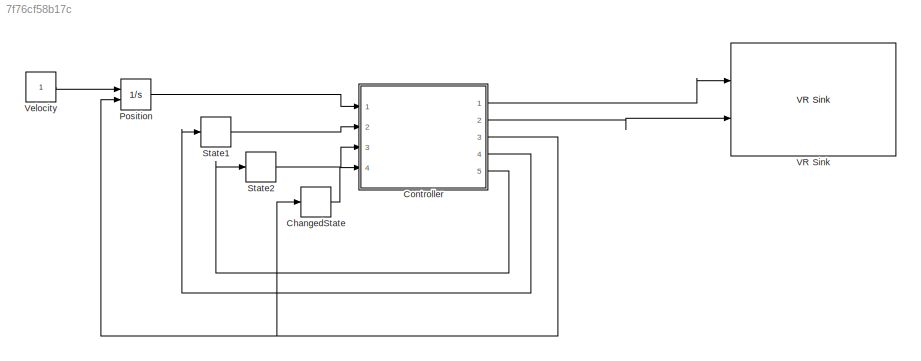
MODEL slx_7f76cf58b17c
KIND model
CONFIG AbsTol = auto
CONFIG FixedStep = auto
CONFIG MaxStep = auto
CONFIG MinStep = auto
CONFIG RelTol = 1e-3
CONFIG SampleTimeConstraint = Unconstrained
CONFIG Solver = VariableStepAuto
CONFIG SolverMode = SingleTasking
CONFIG SolverName = VariableStepAuto
CONFIG StartTime = 0.0
CONFIG StopTime = 10.0
BLOCK [Memory] ChangedState
  InheritSampleTime = on
  LinearizeMemory = on
  X0 = 1
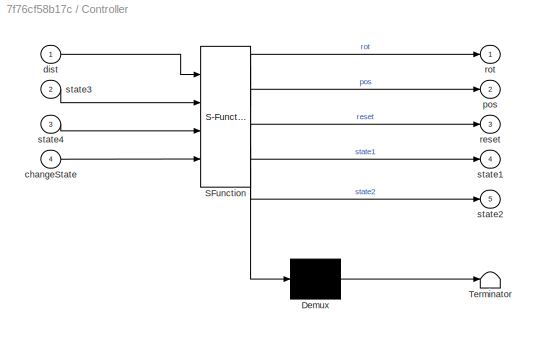
BLOCK [SubSystem] Controller
  ErrorFcn = Stateflow.Translate.translate
  PermitHierarchicalResolution = ExplicitOnly
  Ports = [4, 5]
  RequestExecContextInheritance = off
  SFBlockType = MATLAB Function
  TreatAsAtomicUnit = on
  Variant = off
BLOCK [Demux] Controller/ Demux 
  Outputs = 1
  Ports = [1, 1]
BLOCK [S-Function] Controller/ SFunction 
  EnableBusSupport = on
  FunctionName = sf_sfun
  PortCounts = [4 6]
  Ports = [4, 6]
  SFunctionDeploymentMode = off
  Tag = Stateflow S-Function MovementCoord 2
BLOCK [Terminator] Controller/ Terminator 
BLOCK [Inport] Controller/changeState
  IconDisplay = Port number
  Port = 4
BLOCK [Inport] Controller/dist
  IconDisplay = Port number
BLOCK [Outport] Controller/pos
  IconDisplay = Port number
  Port = 2
BLOCK [Outport] Controller/reset
  IconDisplay = Port number
  Port = 3
BLOCK [Outport] Controller/rot
  IconDisplay = Port number
BLOCK [Outport] Controller/state1
  IconDisplay = Port number
  Port = 4
BLOCK [Outport] Controller/state2
  IconDisplay = Port number
  Port = 5
BLOCK [Inport] Controller/state3
  IconDisplay = Port number
  Port = 2
BLOCK [Inport] Controller/state4
  IconDisplay = Port number
  Port = 3
BLOCK [Integrator] Position
  ExternalReset = rising
  Ports = [2, 1]
BLOCK [Memory] State1
  InheritSampleTime = on
  LinearizeMemory = on
  X0 = 1
BLOCK [Memory] State2
  InheritSampleTime = on
  LinearizeMemory = on
  X0 = 1
BLOCK [Reference] VR Sink  REF=vrlib/VR Sink
  InstantiateOnLoad = on
  Ports = [2]
  SourceBlock = vrlib/VR Sink
  SourceType = Virtual Reality Sink
BLOCK [Constant] Velocity
LINE ChangedState:1 -> Controller:4
LINE Controller:1 -> VR Sink:1
LINE Controller:2 -> VR Sink:2
NET Controller:3 -> ChangedState:1, Position:2
LINE Controller:4 -> State1:1
LINE Controller:5 -> State2:1
LINE Position:1 -> Controller:1
LINE State1:1 -> Controller:2
LINE State2:1 -> Controller:3
LINE Velocity:1 -> Position:1
note: NET lines group one-source signal fan-out (src -> all destinations, sorted); 1:1 wires keep LINE
CHART Controller states=1 transitions=1
  STATE_LABEL 'eML_blk_kernel()'
  STATE_LABEL 'SCRIPT:\nfunction [rot,pos, reset, state1, state2] = fcn(dist, state3, state4, changeState)\n \n    %Variables csOut and changeState enable the simultion to know when to\n    %change the starting and end positions of the ball. It is a feed/back\n    %variable\n    \n    %nrOfEndPos = size(endPos);\n    %nrOfStartPos = size(startPos);\n    nrOfEndPos = 5;\n    nrOfStartPos = 5;\n    \n    if changeState == 1\n ...<+1822ch>'
